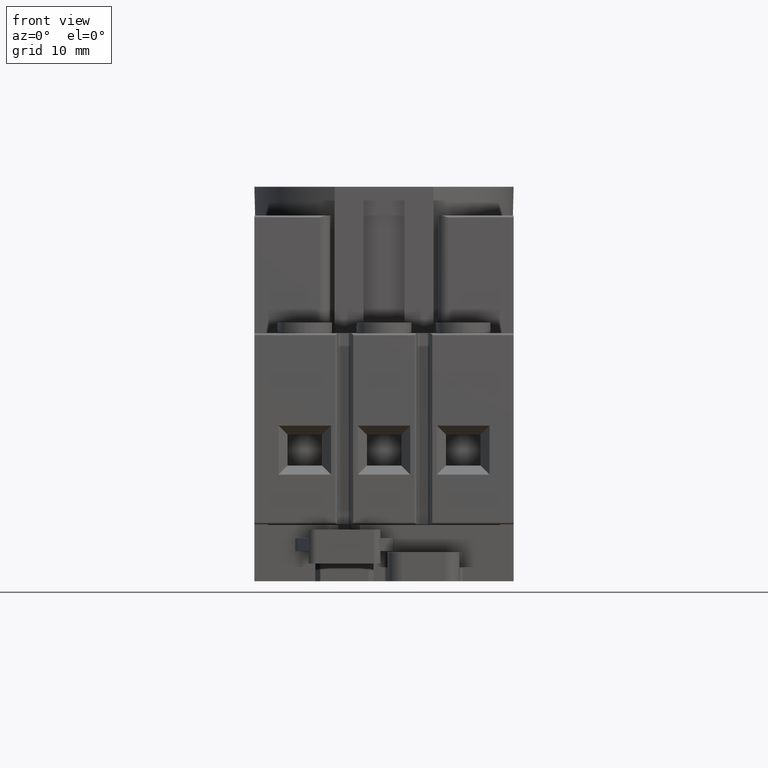
[diagram: clean part render]
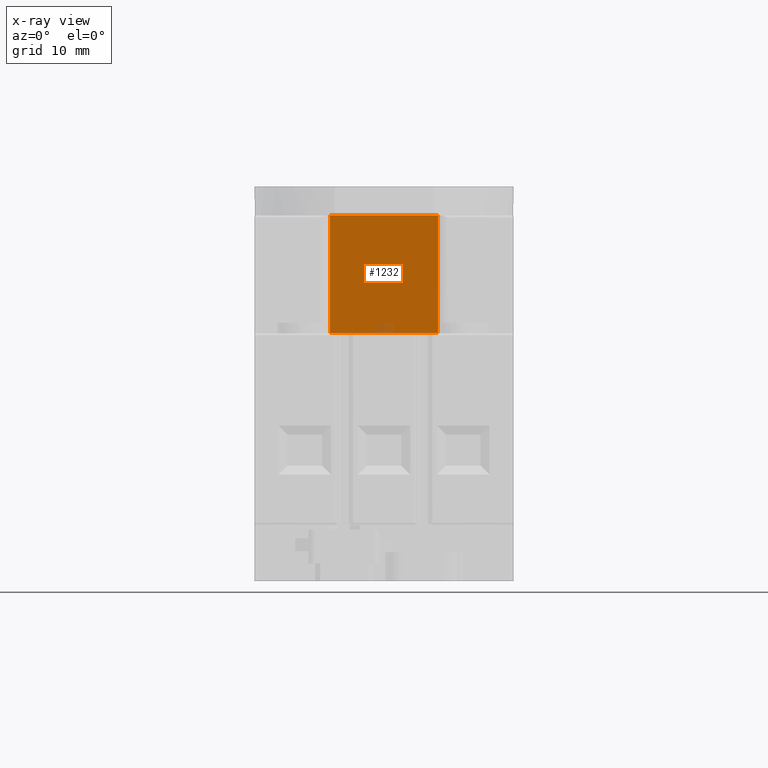
[diagram: x-ray — body ghosted, one internal face saturated and labeled with its STEP entity id]
A machine part, front view, then the same camera in x-ray: the body is ghosted and one INTERNAL B-rep face — a face not visible from any outside direction — is saturated and labeled: STEP entity #1232.
In plain terms, the highlighted planar face has unit normal (0, -1, 0).
Its self-contained STEP definition (entity closure, byte-faithful):
#729=FACE_OUTER_BOUND('',#2263,.T.);
#1232=ADVANCED_FACE('',(#729),#1695,.T.);
#1695=PLANE('',#10385);
#2263=EDGE_LOOP('',(#3928,#3929,#3930,#3931));
#3928=ORIENTED_EDGE('',*,*,#7233,.F.);
#3929=ORIENTED_EDGE('',*,*,#7230,.F.);
#3930=ORIENTED_EDGE('',*,*,#7234,.T.);
#3931=ORIENTED_EDGE('',*,*,#7148,.F.);
#6097=VERTEX_POINT('',#15125);
#6098=VERTEX_POINT('',#15127);
#6159=VERTEX_POINT('',#15389);
#6160=VERTEX_POINT('',#15391);
#7148=EDGE_CURVE('',#6097,#6098,#8359,.T.);
#7230=EDGE_CURVE('',#6159,#6160,#8408,.T.);
#7233=EDGE_CURVE('',#6160,#6097,#8410,.T.);
#7234=EDGE_CURVE('',#6159,#6098,#8411,.T.);
#8359=LINE('',#15126,#9394);
#8408=LINE('',#15390,#9443);
#8410=LINE('',#15396,#9445);
#8411=LINE('',#15397,#9446);
#9394=VECTOR('',#11850,1.);
#9443=VECTOR('',#11971,1.);
#9445=VECTOR('',#11977,1.);
#9446=VECTOR('',#11978,1.);
#10385=AXIS2_PLACEMENT_3D('',#15398,#11979,#11980);
#11850=DIRECTION('',(1.,0.,0.));
#11971=DIRECTION('',(-1.,0.,0.));
#11977=DIRECTION('',(0.,0.,1.));
#11978=DIRECTION('',(0.,0.,1.));
#11979=DIRECTION('',(0.,-1.,0.));
#11980=DIRECTION('',(0.,0.,-1.));
#15125=CARTESIAN_POINT('',(-7.499986453921,-16.4499950835181,-4.00039707062192));
#15126=CARTESIAN_POINT('',(-18.,-16.449995083518,-4.00039707062189));
#15127=CARTESIAN_POINT('',(7.50001353227901,-16.4499950835181,-4.00039707062192));
#15389=CARTESIAN_POINT('',(7.50001353227901,-16.449995083518,-20.3654846919366));
#15390=CARTESIAN_POINT('',(-7.499986453921,-16.449995083518,-20.3654846941745));
#15391=CARTESIAN_POINT('',(-7.499986453921,-16.449995083518,-20.3654846941745));
#15396=CARTESIAN_POINT('',(-7.499986453921,-16.449995083518,-201.618299074955));
#15397=CARTESIAN_POINT('',(7.50001353227901,-16.449995083518,-201.618299074955));
#15398=CARTESIAN_POINT('',(-7.499986453921,-16.449995083518,-201.618299074955));